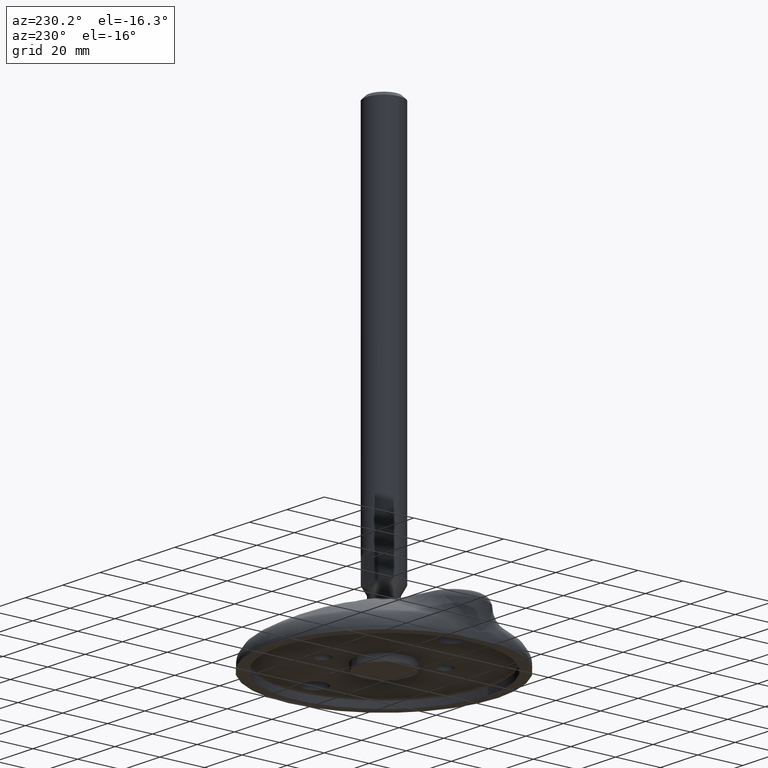
[diagram: clean part render]
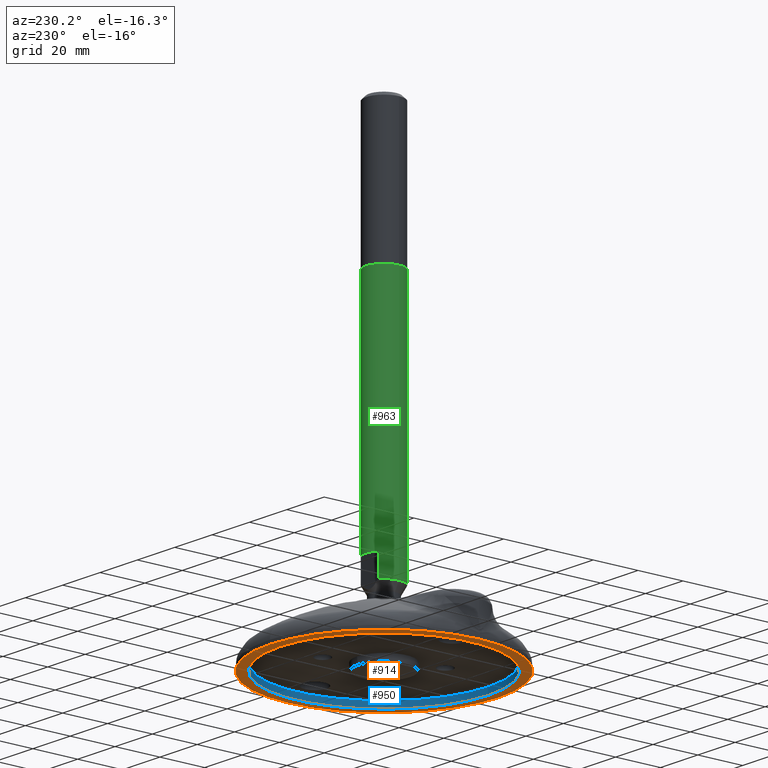
[diagram: same view with three faces highlighted in distinct colors, each labeled with its STEP entity id]
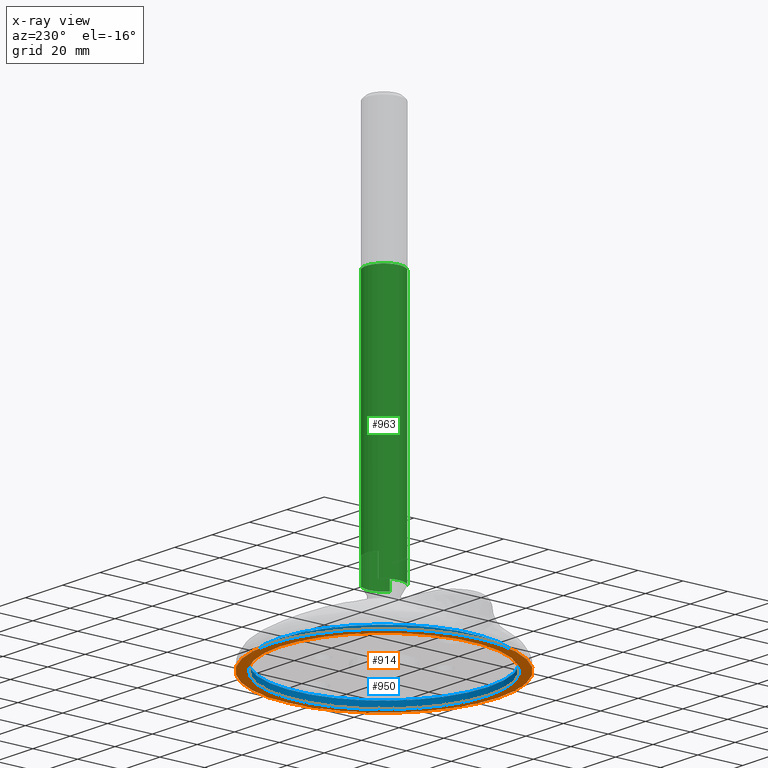
[diagram: x-ray of the same camera — body ghosted, the three highlighted faces saturated]
A machine part, auxiliary view with three faces highlighted in distinct colors.
The next image is the same camera in x-ray (body ghosted, the three faces saturated) — at least one of them is partly hidden behind the body in this view.
Their STEP definitions:

[orange] entity #914 — the highlighted planar face has unit normal (0, 0, 1).
#146=FACE_BOUND('',#216,.T.);
#149=FACE_OUTER_BOUND('',#215,.T.);
#215=EDGE_LOOP('',(#575));
#216=EDGE_LOOP('',(#576));
#283=CIRCLE('',#1006,51.0059948985812);
#284=CIRCLE('',#1007,46.5032577445684);
#359=VERTEX_POINT('',#1398);
#360=VERTEX_POINT('',#1400);
#442=EDGE_CURVE('',#359,#359,#283,.T.);
#443=EDGE_CURVE('',#360,#360,#284,.F.);
#575=ORIENTED_EDGE('',*,*,#442,.F.);
#576=ORIENTED_EDGE('',*,*,#443,.F.);
#836=PLANE('',#1005);
#914=ADVANCED_FACE('',(#149,#146),#836,.F.);
#1005=AXIS2_PLACEMENT_3D('',#1397,#1134,#1135);
#1006=AXIS2_PLACEMENT_3D('',#1399,#1136,#1137);
#1007=AXIS2_PLACEMENT_3D('',#1401,#1138,#1139);
#1134=DIRECTION('center_axis',(0.,0.,1.));
#1135=DIRECTION('ref_axis',(1.,0.,0.));
#1136=DIRECTION('center_axis',(0.,0.,1.));
#1137=DIRECTION('ref_axis',(0.,1.,-1.171453E-15));
#1138=DIRECTION('center_axis',(0.,0.,1.));
#1139=DIRECTION('ref_axis',(1.,0.,0.));
#1397=CARTESIAN_POINT('Origin',(-36.9,1.729065E-13,4.352074E-14));
#1398=CARTESIAN_POINT('',(0.,-51.0059948985812,4.35762537165374E-14));
#1399=CARTESIAN_POINT('Origin',(0.,7.04756674839387E-23,4.35762537165374E-14));
#1400=CARTESIAN_POINT('',(-5.69500657468101E-15,-46.5032577445684,4.32986979603811E-14));
#1401=CARTESIAN_POINT('Origin',(5.416568E-15,3.51436E-15,4.336809E-14));

[blue] entity #950 — the highlighted conical surface has half-angle 2 deg.
#48=CONICAL_SURFACE('',#1070,46.3985037042238,0.0349038323528803);
#101=LINE('',#5380,#124);
#124=VECTOR('',#1272,46.3985037042238);
#185=FACE_OUTER_BOUND('',#253,.T.);
#253=EDGE_LOOP('',(#741,#742,#743,#744));
#277=CIRCLE('',#999,46.3985037042238);
#284=CIRCLE('',#1007,46.5032577445684);
#353=VERTEX_POINT('',#1385);
#360=VERTEX_POINT('',#1400);
#436=EDGE_CURVE('',#353,#353,#277,.T.);
#443=EDGE_CURVE('',#360,#360,#284,.F.);
#526=EDGE_CURVE('',#353,#360,#101,.T.);
#741=ORIENTED_EDGE('',*,*,#436,.F.);
#742=ORIENTED_EDGE('',*,*,#526,.T.);
#743=ORIENTED_EDGE('',*,*,#443,.T.);
#744=ORIENTED_EDGE('',*,*,#526,.F.);
#950=ADVANCED_FACE('',(#185),#48,.F.);
#999=AXIS2_PLACEMENT_3D('',#1386,#1122,#1123);
#1007=AXIS2_PLACEMENT_3D('',#1401,#1138,#1139);
#1070=AXIS2_PLACEMENT_3D('',#5379,#1270,#1271);
#1122=DIRECTION('center_axis',(0.,-1.171453E-15,-1.));
#1123=DIRECTION('ref_axis',(0.,1.,-1.171453E-15));
#1138=DIRECTION('center_axis',(0.,0.,1.));
#1139=DIRECTION('ref_axis',(1.,0.,0.));
#1270=DIRECTION('center_axis',(0.,-1.171453E-15,-1.));
#1271=DIRECTION('ref_axis',(0.,1.,-1.171453E-15));
#1272=DIRECTION('',(-4.27361879126426E-18,-0.0348967456922262,-0.9993909230827));
#1385=CARTESIAN_POINT('',(-5.68217790466042E-15,-46.3985037042238,3.0000000000001));
#1386=CARTESIAN_POINT('Origin',(0.,7.02872E-15,3.00000000000004));
#1400=CARTESIAN_POINT('',(-5.69500657468101E-15,-46.5032577445684,4.32986979603811E-14));
#1401=CARTESIAN_POINT('Origin',(5.416568E-15,3.51436E-15,4.336809E-14));
#5379=CARTESIAN_POINT('Origin',(0.,3.51436E-15,3.00000000000004));
#5380=CARTESIAN_POINT('',(-5.68217790466042E-15,-46.3985037042238,3.0000000000001));

[green] entity #963 — the highlighted cylindrical surface (bore or boss wall) has radius 8 mm, axis along (-0, 0, 1).
#92=CYLINDRICAL_SURFACE('',#1093,7.99999979647845);
#107=LINE('',#5423,#130);
#108=LINE('',#5427,#131);
#109=LINE('',#5431,#132);
#110=LINE('',#5435,#133);
#111=LINE('',#5439,#134);
#130=VECTOR('',#1328,7.99999979647845);
#131=VECTOR('',#1331,1.);
#132=VECTOR('',#1334,1.);
#133=VECTOR('',#1337,1.);
#134=VECTOR('',#1340,1.);
#198=FACE_OUTER_BOUND('',#266,.T.);
#266=EDGE_LOOP('',(#781,#782,#783,#784,#785,#786,#787,#788,#789,#790,#791,
#792,#793));
#339=CIRCLE('',#1094,8.00000082115782);
#340=CIRCLE('',#1095,8.00000082115782);
#341=CIRCLE('',#1096,7.99999877179908);
#342=CIRCLE('',#1097,7.99999979647845);
#343=CIRCLE('',#1098,7.99999877179908);
#344=CIRCLE('',#1099,7.99999979647845);
#345=CIRCLE('',#1100,7.99999877179908);
#418=VERTEX_POINT('',#5418);
#419=VERTEX_POINT('',#5419);
#420=VERTEX_POINT('',#5422);
#421=VERTEX_POINT('',#5424);
#422=VERTEX_POINT('',#5426);
#423=VERTEX_POINT('',#5428);
#424=VERTEX_POINT('',#5430);
#425=VERTEX_POINT('',#5432);
#426=VERTEX_POINT('',#5434);
#427=VERTEX_POINT('',#5436);
#428=VERTEX_POINT('',#5438);
#542=EDGE_CURVE('',#418,#419,#339,.T.);
#543=EDGE_CURVE('',#419,#418,#340,.T.);
#544=EDGE_CURVE('',#419,#420,#107,.T.);
#545=EDGE_CURVE('',#420,#421,#341,.T.);
#546=EDGE_CURVE('',#421,#422,#108,.T.);
#547=EDGE_CURVE('',#422,#423,#342,.F.);
#548=EDGE_CURVE('',#423,#424,#109,.F.);
#549=EDGE_CURVE('',#424,#425,#343,.T.);
#550=EDGE_CURVE('',#426,#425,#110,.F.);
#551=EDGE_CURVE('',#427,#426,#344,.F.);
#552=EDGE_CURVE('',#428,#427,#111,.T.);
#553=EDGE_CURVE('',#428,#420,#345,.T.);
#781=ORIENTED_EDGE('',*,*,#542,.F.);
#782=ORIENTED_EDGE('',*,*,#543,.F.);
#783=ORIENTED_EDGE('',*,*,#544,.T.);
#784=ORIENTED_EDGE('',*,*,#545,.T.);
#785=ORIENTED_EDGE('',*,*,#546,.T.);
#786=ORIENTED_EDGE('',*,*,#547,.T.);
#787=ORIENTED_EDGE('',*,*,#548,.T.);
#788=ORIENTED_EDGE('',*,*,#549,.T.);
#789=ORIENTED_EDGE('',*,*,#550,.F.);
#790=ORIENTED_EDGE('',*,*,#551,.F.);
#791=ORIENTED_EDGE('',*,*,#552,.F.);
#792=ORIENTED_EDGE('',*,*,#553,.T.);
#793=ORIENTED_EDGE('',*,*,#544,.F.);
#963=ADVANCED_FACE('',(#198),#92,.T.);
#1093=AXIS2_PLACEMENT_3D('',#5417,#1322,#1323);
#1094=AXIS2_PLACEMENT_3D('',#5420,#1324,#1325);
#1095=AXIS2_PLACEMENT_3D('',#5421,#1326,#1327);
#1096=AXIS2_PLACEMENT_3D('',#5425,#1329,#1330);
#1097=AXIS2_PLACEMENT_3D('',#5429,#1332,#1333);
#1098=AXIS2_PLACEMENT_3D('',#5433,#1335,#1336);
#1099=AXIS2_PLACEMENT_3D('',#5437,#1338,#1339);
#1100=AXIS2_PLACEMENT_3D('',#5440,#1341,#1342);
#1322=DIRECTION('center_axis',(-1.3938298E-8,6.123234E-17,1.));
#1323=DIRECTION('ref_axis',(1.,0.,1.3938298E-8));
#1324=DIRECTION('center_axis',(0.,0.,1.));
#1325=DIRECTION('ref_axis',(1.,0.,0.));
#1326=DIRECTION('center_axis',(0.,0.,1.));
#1327=DIRECTION('ref_axis',(1.,0.,0.));
#1328=DIRECTION('',(1.3938298E-8,-6.123234E-17,-1.));
#1329=DIRECTION('center_axis',(0.,0.,1.));
#1330=DIRECTION('ref_axis',(1.,0.,0.));
#1331=DIRECTION('',(-1.3938299E-8,0.,1.));
#1332=DIRECTION('center_axis',(5.158643E-16,-7.273662E-16,-1.));
#1333=DIRECTION('ref_axis',(0.,1.,-7.273662E-16));
#1334=DIRECTION('',(-1.3938299E-8,0.,1.));
#1335=DIRECTION('center_axis',(0.,0.,1.));
#1336=DIRECTION('ref_axis',(1.,0.,0.));
#1337=DIRECTION('',(-1.3938299E-8,0.,1.));
#1338=DIRECTION('center_axis',(-5.158643E-16,7.273662E-16,1.));
#1339=DIRECTION('ref_axis',(0.,-1.,7.273662E-16));
#1340=DIRECTION('',(-1.3938299E-8,0.,1.));
#1341=DIRECTION('center_axis',(0.,0.,1.));
#1342=DIRECTION('ref_axis',(1.,0.,0.));
#5417=CARTESIAN_POINT('Origin',(-2.831105206E-6,4.919660066E-6,145.649215401367));
#5418=CARTESIAN_POINT('',(7.99999802421392,4.919660066E-6,143.198320076457));
#5419=CARTESIAN_POINT('',(-8.00000361810172,4.91966006487021E-6,143.198320076457));
#5420=CARTESIAN_POINT('Origin',(-2.796943896E-6,4.919660066E-6,143.198320076457));
#5421=CARTESIAN_POINT('Origin',(-2.796943896E-6,4.919660066E-6,143.198320076457));
#5422=CARTESIAN_POINT('',(-8.00000102467937,4.91966005797856E-6,30.6492141813936));
#5423=CARTESIAN_POINT('',(-8.00000262758365,4.91966006502028E-6,145.649215289861));
#5424=CARTESIAN_POINT('',(-4.66368979020847,-6.4999948783487,30.649214811608));
#5425=CARTESIAN_POINT('Origin',(-1.228200899E-6,4.919660059E-6,30.6492144044064));
#5426=CARTESIAN_POINT('',(-4.66369054383021,-6.49999508071986,40.6492154013672));
#5427=CARTESIAN_POINT('',(-4.66369200853279,-6.49999508033994,145.649215336363));
#5428=CARTESIAN_POINT('',(4.66368781102494,-6.49999507996001,40.6492154013672));
#5429=CARTESIAN_POINT('Origin',(-1.367583916E-6,4.919660089E-6,40.6492154013672));
#5430=CARTESIAN_POINT('',(4.66368730962042,-6.49999487938715,30.6492148339938));
#5431=CARTESIAN_POINT('',(4.66368634632238,-6.49999508033994,145.649215466371));
#5432=CARTESIAN_POINT('',(4.66368730962043,6.50000471870726,30.6492148339938));
#5433=CARTESIAN_POINT('Origin',(-1.228200899E-6,4.919660059E-6,30.6492144044064));
#5434=CARTESIAN_POINT('',(4.66368781102496,6.50000491928014,40.6492154013672));
#5435=CARTESIAN_POINT('',(4.66368634632238,6.50000491966007,145.649215466371));
#5436=CARTESIAN_POINT('',(-4.66369054383023,6.50000492004,40.6492154013672));
#5437=CARTESIAN_POINT('Origin',(-1.367583916E-6,4.919660089E-6,40.6492154013672));
#5438=CARTESIAN_POINT('',(-4.66368979020852,6.50000471766881,30.6492148116081));
#5439=CARTESIAN_POINT('',(-4.66369200853279,6.50000491966007,145.649215336363));
#5440=CARTESIAN_POINT('Origin',(-1.228200899E-6,4.919660059E-6,30.6492144044064));